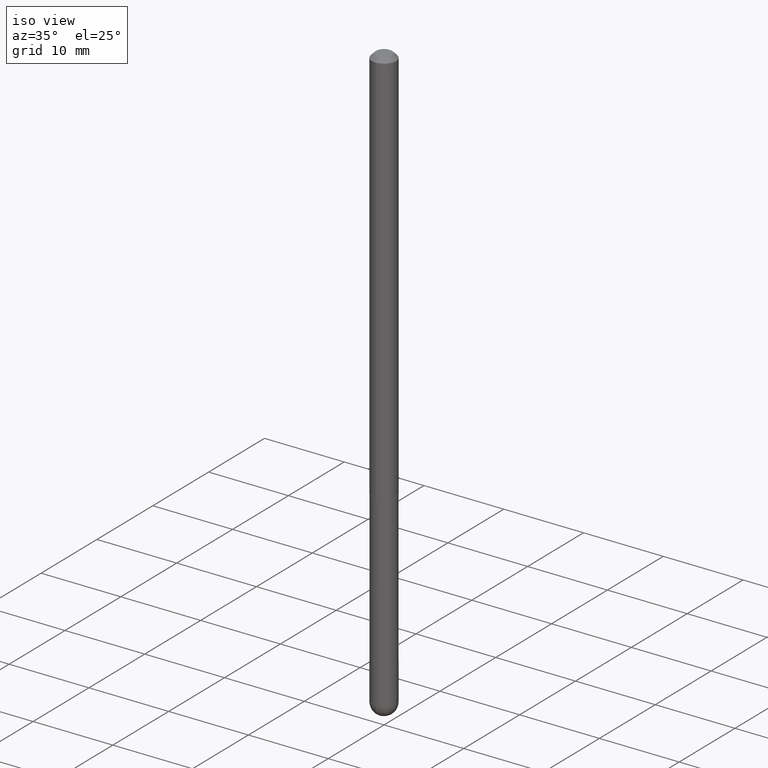
[diagram: clean part render]
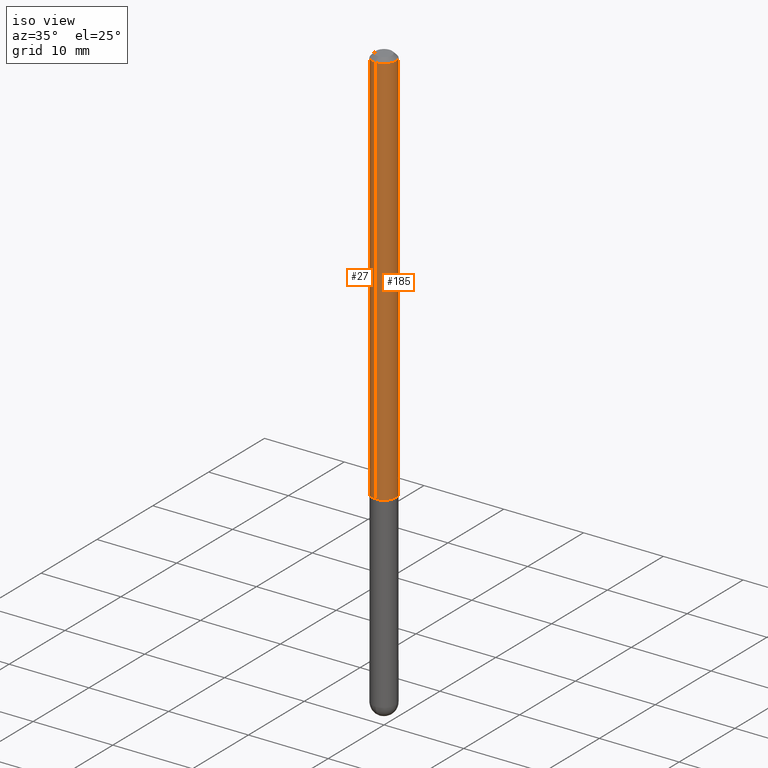
[diagram: same view with one multi-face feature highlighted, each face labeled with its STEP entity id]
A machine part, iso view. The highlighted faces form ONE feature: a constant-radius fillet chain: 2 tangent blend faces with common blend radius 1.4999 mm. The faces share edges in the B-rep.
Their STEP definitions:
[1] entity #185 (Cylinder):
#50 = EDGE_CURVE ( 'NONE', #230, #293, #77, .T. ) ;
#77 = LINE ( 'NONE', #270, #323 ) ;
#78 = CIRCLE ( 'NONE', #186, 0.05905000000000021343 ) ;
#83 = CARTESIAN_POINT ( 'NONE',  ( 4.123439461173745750E-16, 0.05904999999999994975, -0.02000000000000027450 ) ) ;
#89 = DIRECTION ( 'NONE',  ( -2.449347094920523449E-29, 3.485927408635585290E-15, 1.000000000000000000 ) ) ;
#107 = VERTEX_POINT ( 'NONE', #236 ) ;
#109 = ORIENTED_EDGE ( 'NONE', *, *, #50, .T. ) ;
#113 = DIRECTION ( 'NONE',  ( -6.982962677686265922E-15, -1.000000000000000000, 3.469747663417776213E-15 ) ) ;
#117 = DIRECTION ( 'NONE',  ( -2.449347094920523449E-29, 3.485927408635585290E-15, 1.000000000000000000 ) ) ;
#133 = ORIENTED_EDGE ( 'NONE', *, *, #172, .T. ) ;
#159 = EDGE_LOOP ( 'NONE', ( #133, #109, #326, #290 ) ) ;
#162 = VERTEX_POINT ( 'NONE', #201 ) ;
#172 = EDGE_CURVE ( 'NONE', #107, #230, #78, .T. ) ;
#175 = CIRCLE ( 'NONE', #282, 0.05905000000000001914 ) ;
#180 = CARTESIAN_POINT ( 'NONE',  ( 4.898694189841063994E-31, -6.971854817271193900E-17, -0.02000000000000006981 ) ) ;
#185 = ADVANCED_FACE ( 'NONE', ( #246 ), #342, .T. ) ;
#186 = AXIS2_PLACEMENT_3D ( 'NONE', #279, #117, #306 ) ;
#201 = CARTESIAN_POINT ( 'NONE',  ( -4.051124067684085231E-16, -0.05905000000000008159, -0.01999999999999986511 ) ) ;
#207 = DIRECTION ( 'NONE',  ( -2.449347094920523449E-29, 3.485927408635585290E-15, 1.000000000000000000 ) ) ;
#213 = DIRECTION ( 'NONE',  ( -2.449347094920523449E-29, 3.485927408635585290E-15, 1.000000000000000000 ) ) ;
#221 = DIRECTION ( 'NONE',  ( -6.982962677686265922E-15, -1.000000000000000000, 3.485927408635585684E-15 ) ) ;
#230 = VERTEX_POINT ( 'NONE', #353 ) ;
#236 = CARTESIAN_POINT ( 'NONE',  ( -4.123439461173273420E-16, -0.05905000000000706906, -1.967499999999999361 ) ) ;
#246 = FACE_OUTER_BOUND ( 'NONE', #159, .T. ) ;
#270 = CARTESIAN_POINT ( 'NONE',  ( 4.195754854663399367E-16, 0.05905000000000011628, -2.058440134799317436E-16 ) ) ;
#272 = DIRECTION ( 'NONE',  ( -2.449347094920523449E-29, 3.485927408635585290E-15, 1.000000000000000000 ) ) ;
#279 = CARTESIAN_POINT ( 'NONE',  ( 4.819090409256129249E-29, -6.858562176490512022E-15, -1.967499999999999805 ) ) ;
#282 = AXIS2_PLACEMENT_3D ( 'NONE', #180, #272, #113 ) ;
#290 = ORIENTED_EDGE ( 'NONE', *, *, #338, .F. ) ;
#293 = VERTEX_POINT ( 'NONE', #83 ) ;
#305 = VECTOR ( 'NONE', #213, 39.37007874015748143 ) ;
#306 = DIRECTION ( 'NONE',  ( -6.982962677686265922E-15, -1.000000000000000000, 4.626330217890352770E-15 ) ) ;
#323 = VECTOR ( 'NONE', #207, 39.37007874015748143 ) ;
#326 = ORIENTED_EDGE ( 'NONE', *, *, #364, .F. ) ;
#338 = EDGE_CURVE ( 'NONE', #107, #162, #346, .T. ) ;
#342 = CYLINDRICAL_SURFACE ( 'NONE', #386, 0.05905000000000011628 ) ;
#346 = LINE ( 'NONE', #375, #305 ) ;
#353 = CARTESIAN_POINT ( 'NONE',  ( 4.195754854663646379E-16, 0.05904999999999335780, -1.967500000000000027 ) ) ;
#364 = EDGE_CURVE ( 'NONE', #162, #293, #175, .T. ) ;
#375 = CARTESIAN_POINT ( 'NONE',  ( -4.123439461173748216E-16, -0.05905000000000011628, 2.058440134799317436E-16 ) ) ;
#383 = CARTESIAN_POINT ( 'NONE',  ( 0.000000000000000000, 0.000000000000000000, 0.000000000000000000 ) ) ;
#386 = AXIS2_PLACEMENT_3D ( 'NONE', #383, #89, #221 ) ;
[2] entity #27 (Cylinder):
#1 = DIRECTION ( 'NONE',  ( -2.449347094920523449E-29, 3.485927408635585290E-15, 1.000000000000000000 ) ) ;
#24 = AXIS2_PLACEMENT_3D ( 'NONE', #184, #271, #409 ) ;
#27 = ADVANCED_FACE ( 'NONE', ( #357 ), #395, .T. ) ;
#50 = EDGE_CURVE ( 'NONE', #230, #293, #77, .T. ) ;
#64 = EDGE_LOOP ( 'NONE', ( #75, #203, #268, #238 ) ) ;
#75 = ORIENTED_EDGE ( 'NONE', *, *, #50, .F. ) ;
#77 = LINE ( 'NONE', #270, #323 ) ;
#83 = CARTESIAN_POINT ( 'NONE',  ( 4.123439461173745750E-16, 0.05904999999999994975, -0.02000000000000027450 ) ) ;
#107 = VERTEX_POINT ( 'NONE', #236 ) ;
#108 = DIRECTION ( 'NONE',  ( -6.982962677686265922E-15, -1.000000000000000000, 3.469747663417776213E-15 ) ) ;
#110 = EDGE_CURVE ( 'NONE', #293, #162, #296, .T. ) ;
#162 = VERTEX_POINT ( 'NONE', #201 ) ;
#184 = CARTESIAN_POINT ( 'NONE',  ( 4.819090409256129249E-29, -6.858562176490512022E-15, -1.967499999999999805 ) ) ;
#201 = CARTESIAN_POINT ( 'NONE',  ( -4.051124067684085231E-16, -0.05905000000000008159, -0.01999999999999986511 ) ) ;
#203 = ORIENTED_EDGE ( 'NONE', *, *, #218, .T. ) ;
#207 = DIRECTION ( 'NONE',  ( -2.449347094920523449E-29, 3.485927408635585290E-15, 1.000000000000000000 ) ) ;
#213 = DIRECTION ( 'NONE',  ( -2.449347094920523449E-29, 3.485927408635585290E-15, 1.000000000000000000 ) ) ;
#218 = EDGE_CURVE ( 'NONE', #230, #107, #309, .T. ) ;
#230 = VERTEX_POINT ( 'NONE', #353 ) ;
#236 = CARTESIAN_POINT ( 'NONE',  ( -4.123439461173273420E-16, -0.05905000000000706906, -1.967499999999999361 ) ) ;
#238 = ORIENTED_EDGE ( 'NONE', *, *, #110, .F. ) ;
#244 = DIRECTION ( 'NONE',  ( -6.982962677686265922E-15, -1.000000000000000000, 3.485927408635585684E-15 ) ) ;
#268 = ORIENTED_EDGE ( 'NONE', *, *, #338, .T. ) ;
#270 = CARTESIAN_POINT ( 'NONE',  ( 4.195754854663399367E-16, 0.05905000000000011628, -2.058440134799317436E-16 ) ) ;
#271 = DIRECTION ( 'NONE',  ( -2.449347094920523449E-29, 3.485927408635585290E-15, 1.000000000000000000 ) ) ;
#284 = AXIS2_PLACEMENT_3D ( 'NONE', #399, #370, #108 ) ;
#293 = VERTEX_POINT ( 'NONE', #83 ) ;
#296 = CIRCLE ( 'NONE', #284, 0.05905000000000001914 ) ;
#304 = CARTESIAN_POINT ( 'NONE',  ( 0.000000000000000000, 0.000000000000000000, 0.000000000000000000 ) ) ;
#305 = VECTOR ( 'NONE', #213, 39.37007874015748143 ) ;
#309 = CIRCLE ( 'NONE', #24, 0.05905000000000021343 ) ;
#323 = VECTOR ( 'NONE', #207, 39.37007874015748143 ) ;
#338 = EDGE_CURVE ( 'NONE', #107, #162, #346, .T. ) ;
#344 = AXIS2_PLACEMENT_3D ( 'NONE', #304, #1, #244 ) ;
#346 = LINE ( 'NONE', #375, #305 ) ;
#353 = CARTESIAN_POINT ( 'NONE',  ( 4.195754854663646379E-16, 0.05904999999999335780, -1.967500000000000027 ) ) ;
#357 = FACE_OUTER_BOUND ( 'NONE', #64, .T. ) ;
#370 = DIRECTION ( 'NONE',  ( -2.449347094920523449E-29, 3.485927408635585290E-15, 1.000000000000000000 ) ) ;
#375 = CARTESIAN_POINT ( 'NONE',  ( -4.123439461173748216E-16, -0.05905000000000011628, 2.058440134799317436E-16 ) ) ;
#395 = CYLINDRICAL_SURFACE ( 'NONE', #344, 0.05905000000000011628 ) ;
#399 = CARTESIAN_POINT ( 'NONE',  ( 4.898694189841063994E-31, -6.971854817271193900E-17, -0.02000000000000006981 ) ) ;
#409 = DIRECTION ( 'NONE',  ( -6.982962677686265922E-15, -1.000000000000000000, 4.626330217890352770E-15 ) ) ;